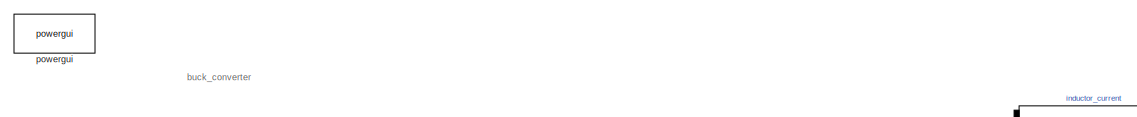
[diagram: root canvas - part 1/3, top center region]
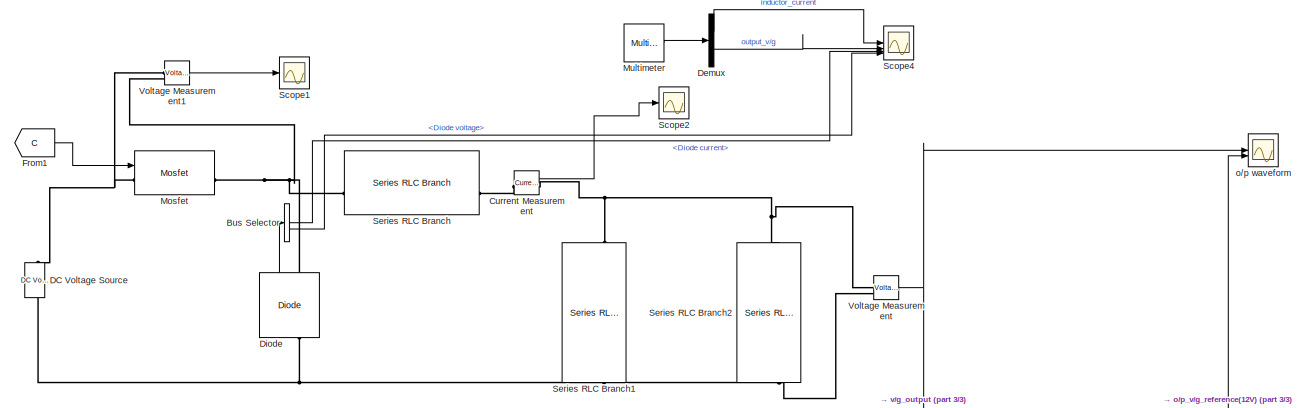
[diagram: root canvas - part 2/3, full width, middle band]
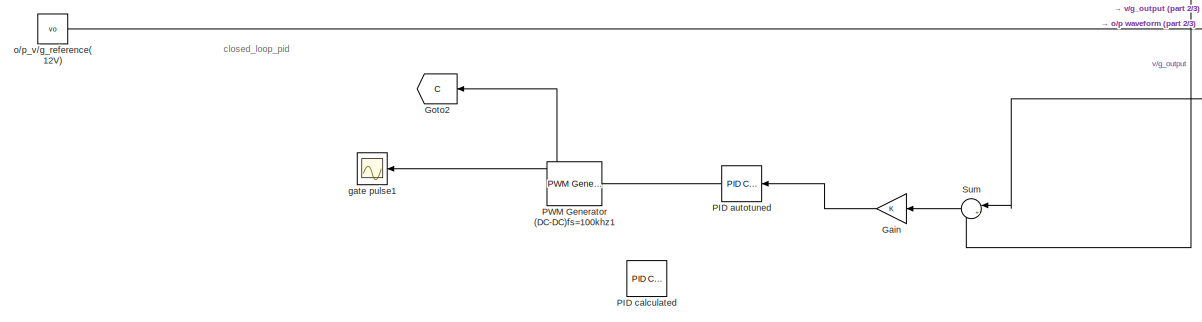
[diagram: root canvas - part 3/3, full width, bottom band]
MODEL slx_536353cb9f58
KIND model
CONFIG AbsTol = auto
CONFIG EnableMultiTasking = off
CONFIG FixedStep = 1e-7
CONFIG MaxStep = auto
CONFIG MinStep = auto
CONFIG RelTol = 1e-3
CONFIG SampleTimeConstraint = Unconstrained
CONFIG SolverName = ode4
CONFIG StartTime = 0.0
CONFIG StopTime = .5
BLOCK [BusSelector] Bus Selector
  OutputSignals = Diode current,Diode voltage
BLOCK [Reference] Current Measurement  REF=spsCurrentMeasurementLib/Current Measurement
  LibrarySourceBlock = sps_lib/Sensors and Measurements/Current Measurement
  SourceBlock = spsCurrentMeasurementLib/Current Measurement
  SourceType = Current Measurement
  UserDataPersistent = on
BLOCK [Reference] DC Voltage Source  REF=spsDCVoltageSourceLib/DC Voltage Source
  LibrarySourceBlock = sps_lib/Sources/DC Voltage Source
  SourceBlock = spsDCVoltageSourceLib/DC Voltage Source
  SourceType = DC Voltage Source
BLOCK [Demux] Demux
  Outputs = 2
BLOCK [Reference] Diode  REF=spsDiodeLib/Diode
  LibrarySourceBlock = sps_lib/Power Electronics/Diode
  NameLocation = right
  SourceBlock = spsDiodeLib/Diode
  SourceType = Diode
BLOCK [From] From1
  GotoTag = C
BLOCK [Gain] Gain
  NameLocation = top
BLOCK [Goto] Goto2
  GotoTag = C
  NameLocation = top
BLOCK [Reference] Mosfet  REF=spsMosfetLib/Mosfet
  LibrarySourceBlock = sps_lib/Power Electronics/Mosfet
  SourceBlock = spsMosfetLib/Mosfet
  SourceType = Mosfet
BLOCK [Reference] Multimeter  REF=spsMultimeterLib/Multimeter
  LibrarySourceBlock = sps_lib/Sensors and Measurements/Multimeter
  SourceBlock = spsMultimeterLib/Multimeter
  SourceType = Multimeter
BLOCK [Reference] PID autotuned  REF=slpidlib/PID Controller
  LibrarySourceBlock = simulink/Continuous/PID Controller
  NameLocation = top
  SourceBlock = slpidlib/PID Controller
  SourceType = PID 1dof
BLOCK [Reference] PID calculated  REF=slpidlib/PID Controller
  LibrarySourceBlock = simulink/Continuous/PID Controller
  NameLocation = top
  SourceBlock = slpidlib/PID Controller
  SourceType = PID 1dof
BLOCK [Reference] PWM Generator (DC-DC)fs=100khz1  REF=spsPWMGeneratorDCDCLib/PWM Generator
(DC-DC)
  LibrarySourceBlock = sps_lib/Power Electronics/Power Electronics Control/PWM Generator\n(DC-DC)
  NameLocation = top
  SourceBlock = spsPWMGeneratorDCDCLib/PWM Generator\n(DC-DC)
  SourceType = PWM Generator (DC-DC)
BLOCK [Scope] Scope1
  Floating = off
  NumInputPorts = 1
  ScopeSpecificationString = Simulink.scopes.TimeScopeBlockCfg('CurrentConfiguration', extmgr.ConfigurationSet(extmgr.Configuration('Core','General UI',true),extmgr.Configuration('Core','Source UI',true),extmgr.Configuration('Sources','WiredSimulink',true,'DataLoggingVariableName','ScopeData1'),extmgr.Configuration('Visuals','Time Domain',true,'SerializedDisplays',{struct('MinYLimReal','-3.09728','MaxYLimReal','27.92373','YLa...<+1512ch>
BLOCK [Scope] Scope2
  Floating = off
  NumInputPorts = 1
  ScopeSpecificationString = Simulink.scopes.TimeScopeBlockCfg('CurrentConfiguration', extmgr.ConfigurationSet(extmgr.Configuration('Core','General UI',true),extmgr.Configuration('Core','Source UI',true),extmgr.Configuration('Sources','WiredSimulink',true,'DataLoggingVariableName','ScopeData2'),extmgr.Configuration('Visuals','Time Domain',true,'SerializedDisplays',{struct('MinYLimReal','-2.70473','MaxYLimReal','24.34259','YLa...<+1514ch>
BLOCK [Scope] Scope4
  Floating = off
  NumInputPorts = 4
  ScopeSpecificationString = Simulink.scopes.TimeScopeBlockCfg('CurrentConfiguration', extmgr.ConfigurationSet(extmgr.Configuration('Core','General UI',true),extmgr.Configuration('Core','Source UI',true),extmgr.Configuration('Sources','WiredSimulink',true,'DataLoggingVariableName','ScopeData1'),extmgr.Configuration('Visuals','Time Domain',true,'SerializedDisplays',{struct('MinYLimReal','-3.95336','MaxYLimReal','35.46441','YLa...<+3996ch>
BLOCK [Reference] Series RLC Branch  REF=spsSeriesRLCBranchLib/Series RLC Branch
  LibrarySourceBlock = sps_lib/Passives/Series RLC Branch
  SourceBlock = spsSeriesRLCBranchLib/Series RLC Branch
  SourceType = Series RLC Branch
BLOCK [Reference] Series RLC Branch1  REF=spsSeriesRLCBranchLib/Series RLC Branch
  LibrarySourceBlock = sps_lib/Passives/Series RLC Branch
  NameLocation = left
  SourceBlock = spsSeriesRLCBranchLib/Series RLC Branch
  SourceType = Series RLC Branch
BLOCK [Reference] Series RLC Branch2  REF=spsSeriesRLCBranchLib/Series RLC Branch
  LibrarySourceBlock = sps_lib/Passives/Series RLC Branch
  NameLocation = left
  SourceBlock = spsSeriesRLCBranchLib/Series RLC Branch
  SourceType = Series RLC Branch
BLOCK [Sum] Sum
  Inputs = |+-
  NameLocation = top
BLOCK [Reference] Voltage Measurement  REF=spsVoltageMeasurementLib/Voltage Measurement
  LibrarySourceBlock = sps_lib/Sensors and Measurements/Voltage Measurement
  SourceBlock = spsVoltageMeasurementLib/Voltage Measurement
  SourceType = Voltage Measurement
  UserDataPersistent = on
BLOCK [Reference] Voltage Measurement1  REF=spsVoltageMeasurementLib/Voltage Measurement
  LibrarySourceBlock = sps_lib/Sensors and Measurements/Voltage Measurement
  SourceBlock = spsVoltageMeasurementLib/Voltage Measurement
  SourceType = Voltage Measurement
  UserDataPersistent = on
BLOCK [Scope] gate pulse1
  Floating = off
  NameLocation = top
  NumInputPorts = 1
  ScopeSpecificationString = Simulink.scopes.TimeScopeBlockCfg('CurrentConfiguration', extmgr.ConfigurationSet(extmgr.Configuration('Core','General UI',true),extmgr.Configuration('Core','Source UI',true),extmgr.Configuration('Sources','WiredSimulink',true,'DataLoggingVariableName','ScopeData2'),extmgr.Configuration('Visuals','Time Domain',true,'SerializedDisplays',{struct('MinYLimReal','-0.125','MaxYLimReal','1.125','YLabelRe...<+1577ch>
BLOCK [Scope] o//p waveform
  Floating = off
  NumInputPorts = 2
  ScopeSpecificationString = Simulink.scopes.TimeScopeBlockCfg('CurrentConfiguration', extmgr.ConfigurationSet(extmgr.Configuration('Core','General UI',true),extmgr.Configuration('Core','Source UI',true),extmgr.Configuration('Sources','WiredSimulink',true),extmgr.Configuration('Visuals','Time Domain',true,'SerializedDisplays',{struct('MinYLimReal','-1.51262','MaxYLimReal','13.6136','YLabelReal','','MinYLimMag','0.00000','MaxY...<+1930ch>
BLOCK [Constant] o//p_v//g_reference(12V)
  Value = vo
BLOCK [Reference] powergui  REF=spspowerguiLib/powergui
  LibrarySourceBlock = sps_lib/powergui
  Priority = 1
  SourceBlock = spspowerguiLib/powergui
  SourceType = PSB option menu block
ANNOTATION (root): buck_converter
ANNOTATION (root): closed_loop_pid
LINE Bus Selector:1 -> Scope4:3
LINE Bus Selector:2 -> Scope4:4
LINE Current Measurement:1 -> Scope2:1
LINE Demux:1 -> Scope4:1
LINE Demux:2 -> Scope4:2
LINE Diode:1 -> Bus Selector:1
LINE From1:1 -> Mosfet:1
LINE Gain:1 -> PID autotuned:1
LINE Multimeter:1 -> Demux:1
LINE PID autotuned:1 -> PWM Generator (DC-DC)fs=100khz1:1
NET PWM Generator (DC-DC)fs=100khz1:1 -> Goto2:1, gate pulse1:1
LINE Sum:1 -> Gain:1
LINE Voltage Measurement1:1 -> Scope1:1
NET Voltage Measurement:1 -> Sum:2, o//p waveform:1
NET o//p_v//g_reference(12V):1 -> Sum:1, o//p waveform:2
PLINE Current Measurement:LConn1 -- Series RLC Branch:RConn1
PNET net1: Current Measurement:RConn1 -- Series RLC Branch1:LConn1 -- Series RLC Branch2:LConn1 -- Voltage Measurement:LConn1
PNET net2: DC Voltage Source:LConn1 -- Diode:LConn1 -- Series RLC Branch1:RConn1 -- Series RLC Branch2:RConn1 -- Voltage Measurement:LConn2
PNET net3: DC Voltage Source:RConn1 -- Mosfet:LConn1 -- Voltage Measurement1:LConn1
PNET net4: Diode:RConn1 -- Mosfet:RConn1 -- Series RLC Branch:LConn1 -- Voltage Measurement1:LConn2
note: NET lines group one-source signal fan-out (src -> all destinations, sorted); 1:1 wires keep LINE; PNET lines group multi-terminal physical nets as a canonical sorted terminal list (undirected conserving connections); 2-terminal nets keep the pairwise PLINE form
